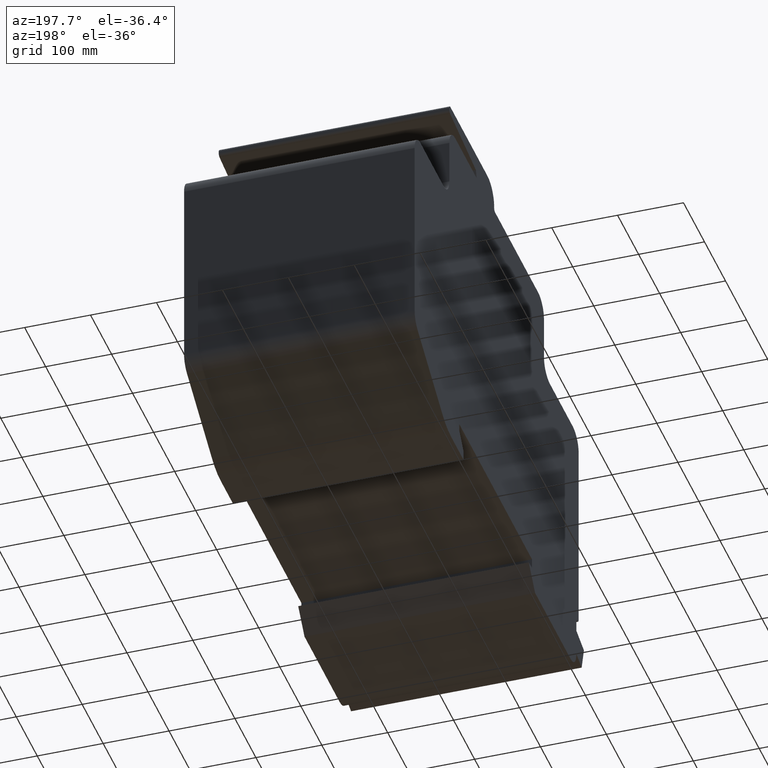
[diagram: clean part render]
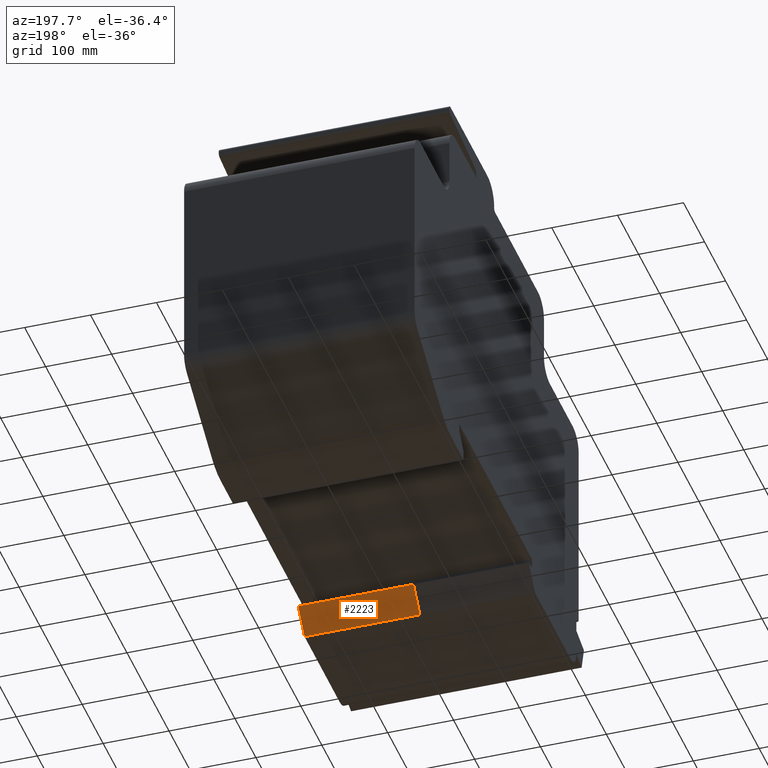
[diagram: same view with one face highlighted and labeled with its STEP entity id]
A machine part, auxiliary view. The second image highlights one B-rep face of the part: STEP entity #2223.
In plain terms, the highlighted planar face has unit normal (0, 0.7468, -0.665).
Its self-contained STEP definition (entity closure, byte-faithful):
#2167=CARTESIAN_POINT('',(350.00000000000057,-330.99999999999994,-16.312329952900058));
#2168=VERTEX_POINT('',#2167);
#2175=CARTESIAN_POINT('',(175.00000000000028,-330.99999999999994,-16.312329952900058));
#2176=VERTEX_POINT('',#2175);
#2177=CARTESIAN_POINT('',(175.00000000000028,-330.99999999999994,-16.312329952900058));
#2178=DIRECTION('',(1.0,0.0,0.0));
#2179=VECTOR('',#2178,175.00000000000028);
#2180=LINE('',#2177,#2179);
#2181=EDGE_CURVE('',#2176,#2168,#2180,.T.);
#2193=CARTESIAN_POINT('',(175.00000000000028,-330.99999999999994,-16.312329952900058));
#2194=DIRECTION('',(0.0,0.74679912768745,-0.665049669487373));
#2195=DIRECTION('',(-1.0,0.0,0.0));
#2196=AXIS2_PLACEMENT_3D('',#2193,#2194,#2195);
#2197=PLANE('',#2196);
#2198=CARTESIAN_POINT('',(350.00000000000057,-360.99999999999994,-50.0));
#2199=VERTEX_POINT('',#2198);
#2200=CARTESIAN_POINT('',(350.00000000000057,-330.99999999999994,-16.312329952900058));
#2201=DIRECTION('',(0.0,-0.665049669487373,-0.74679912768745));
#2202=VECTOR('',#2201,45.109412689618068);
#2203=LINE('',#2200,#2202);
#2204=EDGE_CURVE('',#2168,#2199,#2203,.T.);
#2205=ORIENTED_EDGE('',*,*,#2204,.T.);
#2206=CARTESIAN_POINT('',(175.00000000000028,-360.99999999999994,-50.0));
#2207=VERTEX_POINT('',#2206);
#2208=CARTESIAN_POINT('',(175.00000000000028,-360.99999999999994,-50.0));
#2209=DIRECTION('',(1.0,0.0,0.0));
#2210=VECTOR('',#2209,175.00000000000028);
#2211=LINE('',#2208,#2210);
#2212=EDGE_CURVE('',#2207,#2199,#2211,.T.);
#2213=ORIENTED_EDGE('',*,*,#2212,.F.);
#2214=CARTESIAN_POINT('',(175.00000000000028,-330.99999999999994,-16.312329952900058));
#2215=DIRECTION('',(0.0,-0.665049669487373,-0.74679912768745));
#2216=VECTOR('',#2215,45.109412689618068);
#2217=LINE('',#2214,#2216);
#2218=EDGE_CURVE('',#2176,#2207,#2217,.T.);
#2219=ORIENTED_EDGE('',*,*,#2218,.F.);
#2220=ORIENTED_EDGE('',*,*,#2181,.T.);
#2221=EDGE_LOOP('',(#2205,#2213,#2219,#2220));
#2222=FACE_OUTER_BOUND('',#2221,.T.);
#2223=ADVANCED_FACE('',(#2222),#2197,.T.);